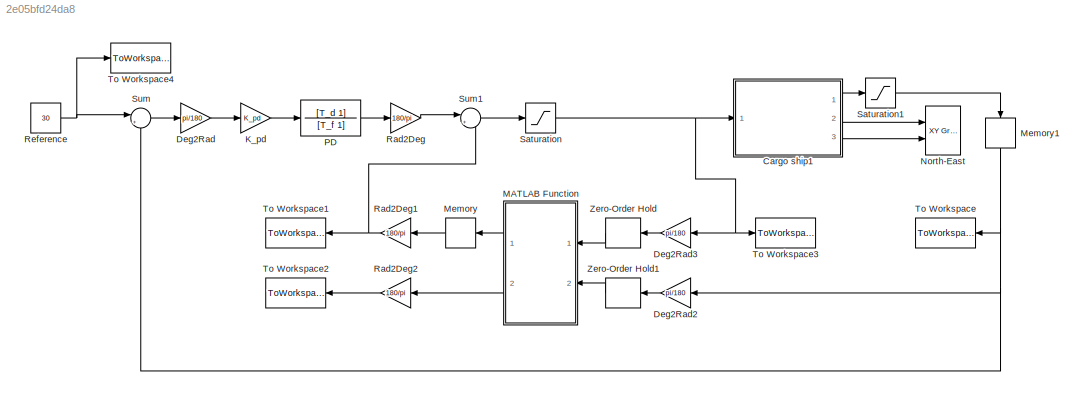
MODEL slx_2e05bfd24da8
KIND model
CONFIG AbsTol = auto
CONFIG EnableMultiTasking = on
CONFIG FixedStep = auto
CONFIG MaxStep = auto
CONFIG MinStep = auto
CONFIG RelTol = 1e-3
CONFIG SampleTimeConstraint = Unconstrained
CONFIG Solver = ode45
CONFIG SolverName = ode45
CONFIG StartTime = 0.0
CONFIG StopTime = 500
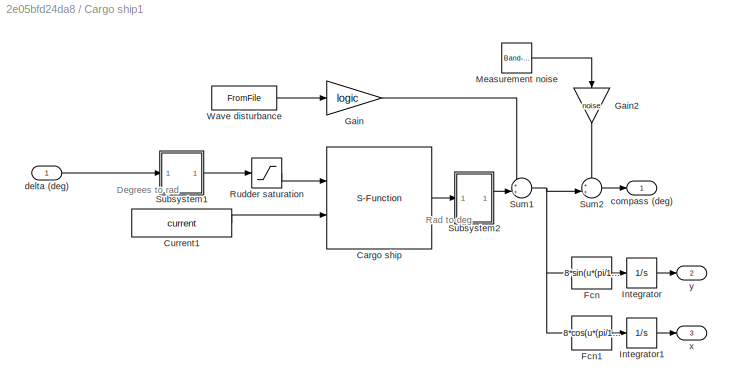
BLOCK [SubSystem] Cargo ship1
  Ports = [1, 3]
  RequestExecContextInheritance = off
BLOCK [S-Function] Cargo ship1/Cargo ship
  EnableBusSupport = off
  FunctionName = Cargoship
  Ports = [2, 1]
  SFcnIsStateOwnerBlock = off
  SFunctionDeploymentMode = off
BLOCK [Constant] Cargo ship1/Current1
  Value = current
BLOCK [Fcn] Cargo ship1/Fcn
  Expr = 8*sin(u*(pi/180))
BLOCK [Fcn] Cargo ship1/Fcn1
  Expr = 8*cos(u*(pi/180))
BLOCK [Gain] Cargo ship1/Gain
  Gain = logic
BLOCK [Gain] Cargo ship1/Gain2
  Gain = noise
BLOCK [Integrator] Cargo ship1/Integrator
  Ports = [1, 1]
BLOCK [Integrator] Cargo ship1/Integrator1
  Ports = [1, 1]
BLOCK [Reference] Cargo ship1/Measurement noise  REF=simulink/Sources/Band-Limited
White Noise
  Ports = [0, 1]
  SourceBlock = simulink/Sources/Band-Limited\nWhite Noise
  SourceProductBaseCode = SL
  SourceProductName = Simulink
  SourceType = Band-Limited White Noise.
BLOCK [Saturate] Cargo ship1/Rudder saturation
  InputPortMap = u0
  LowerLimit = -45*(pi/180)
  Ports = [1, 1]
  UpperLimit = 45*(pi/180)
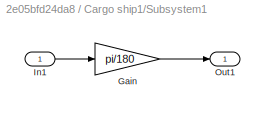
BLOCK [SubSystem] Cargo ship1/Subsystem1
  Ports = [1, 1]
  RequestExecContextInheritance = off
BLOCK [Gain] Cargo ship1/Subsystem1/Gain
  Gain = pi/180
BLOCK [Inport] Cargo ship1/Subsystem1/In1
  IconDisplay = Port number
BLOCK [Outport] Cargo ship1/Subsystem1/Out1
  IconDisplay = Port number
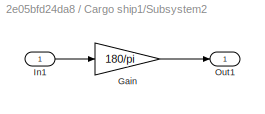
BLOCK [SubSystem] Cargo ship1/Subsystem2
  Ports = [1, 1]
  RequestExecContextInheritance = off
BLOCK [Gain] Cargo ship1/Subsystem2/Gain
  Gain = 180/pi
BLOCK [Inport] Cargo ship1/Subsystem2/In1
  IconDisplay = Port number
BLOCK [Outport] Cargo ship1/Subsystem2/Out1
  IconDisplay = Port number
BLOCK [Sum] Cargo ship1/Sum1
  IconShape = round
  InputSameDT = off
  Inputs = ++|
  OutDataTypeStr = Inherit: Inherit via internal rule
  Ports = [2, 1]
BLOCK [Sum] Cargo ship1/Sum2
  IconShape = round
  InputSameDT = off
  Inputs = ++|
  OutDataTypeStr = Inherit: Inherit via internal rule
  Ports = [2, 1]
BLOCK [FromFile] Cargo ship1/Wave disturbance
  FileName = wave.mat
  SampleTime = 0
BLOCK [Outport] Cargo ship1/compass (deg)
  IconDisplay = Port number
BLOCK [Inport] Cargo ship1/delta (deg)
  IconDisplay = Port number
BLOCK [Outport] Cargo ship1/x
  IconDisplay = Port number
  Port = 3
BLOCK [Outport] Cargo ship1/y
  IconDisplay = Port number
  Port = 2
BLOCK [Gain] Deg2Rad
  Gain = pi/180
  OutDataTypeStr = Inherit: Inherit via internal rule
  ParamDataTypeStr = Inherit: Inherit via internal rule
  SaturateOnIntegerOverflow = off
BLOCK [Gain] Deg2Rad2
  Gain = pi/180
  OutDataTypeStr = Inherit: Inherit via internal rule
  ParamDataTypeStr = Inherit: Inherit via internal rule
  SaturateOnIntegerOverflow = off
BLOCK [Gain] Deg2Rad3
  Gain = pi/180
  OutDataTypeStr = Inherit: Inherit via internal rule
  ParamDataTypeStr = Inherit: Inherit via internal rule
  SaturateOnIntegerOverflow = off
BLOCK [Gain] K_pd
  Gain = K_pd
  OutDataTypeStr = Inherit: Inherit via internal rule
  ParamDataTypeStr = Inherit: Inherit via internal rule
  SaturateOnIntegerOverflow = off
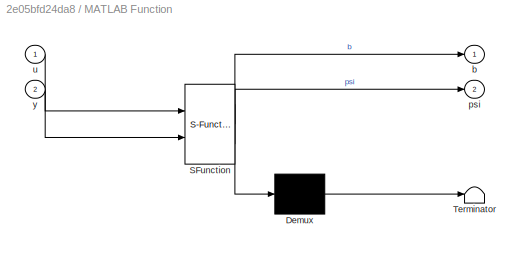
BLOCK [SubSystem] MATLAB Function
  ErrorFcn = Stateflow.Translate.translate
  PermitHierarchicalResolution = ExplicitOnly
  Ports = [2, 2]
  RequestExecContextInheritance = off
  SFBlockType = MATLAB Function
  TreatAsAtomicUnit = on
BLOCK [Demux] MATLAB Function/ Demux 
  Outputs = 1
  Ports = [1, 1]
BLOCK [S-Function] MATLAB Function/ SFunction 
  EnableBusSupport = on
  FunctionName = sf_sfun
  Parameters = data
  PortCounts = [2 3]
  Ports = [2, 3]
  SFcnIsStateOwnerBlock = off
  SFunctionDeploymentMode = off
  Tag = Stateflow S-Function KF_d 2
BLOCK [Terminator] MATLAB Function/ Terminator 
BLOCK [Outport] MATLAB Function/b
  IconDisplay = Port number
BLOCK [Outport] MATLAB Function/psi
  IconDisplay = Port number
  Port = 2
BLOCK [Inport] MATLAB Function/u
  IconDisplay = Port number
BLOCK [Inport] MATLAB Function/y
  IconDisplay = Port number
  Port = 2
BLOCK [Memory] Memory
BLOCK [Memory] Memory1
BLOCK [Reference] North-East  REF=simulink/Sinks/XY Graph
  Ports = [2]
  SourceBlock = simulink/Sinks/XY Graph
  SourceProductBaseCode = SL
  SourceProductName = Simulink
  SourceType = XY scope.
BLOCK [TransferFcn] PD
  Denominator = [T_f 1]
  Numerator = [T_d 1]
BLOCK [Gain] Rad2Deg
  Gain = 180/pi
  OutDataTypeStr = Inherit: Inherit via internal rule
  ParamDataTypeStr = Inherit: Inherit via internal rule
  SaturateOnIntegerOverflow = off
BLOCK [Gain] Rad2Deg1
  Gain = 180/pi
  OutDataTypeStr = Inherit: Inherit via internal rule
  ParamDataTypeStr = Inherit: Inherit via internal rule
  SaturateOnIntegerOverflow = off
BLOCK [Gain] Rad2Deg2
  Gain = 180/pi
  OutDataTypeStr = Inherit: Inherit via internal rule
  ParamDataTypeStr = Inherit: Inherit via internal rule
  SaturateOnIntegerOverflow = off
BLOCK [Constant] Reference
  Value = 30
BLOCK [Saturate] Saturation
  InputPortMap = u0
  LowerLimit = -45
  Ports = [1, 1]
  UpperLimit = 45
BLOCK [Saturate] Saturation1
  InputPortMap = u0
  LowerLimit = -35
  Ports = [1, 1]
  UpperLimit = 35
BLOCK [Sum] Sum
  IconShape = round
  InputSameDT = off
  Inputs = |+-
  OutDataTypeStr = Inherit: Inherit via internal rule
  Ports = [2, 1]
  SaturateOnIntegerOverflow = off
BLOCK [Sum] Sum1
  IconShape = round
  InputSameDT = off
  Inputs = |++
  OutDataTypeStr = Inherit: Inherit via internal rule
  Ports = [2, 1]
  SaturateOnIntegerOverflow = off
BLOCK [ToWorkspace] To Workspace
  FixptAsFi = on
  MaxDataPoints = inf
  Ports = [1]
  SampleTime = -1
  Save2DSignal = 3-D array (concatenate along third dimension)
  SaveFormat = Timeseries
  VariableName = compass
BLOCK [ToWorkspace] To Workspace1
  FixptAsFi = on
  MaxDataPoints = inf
  Ports = [1]
  SampleTime = -1
  Save2DSignal = 3-D array (concatenate along third dimension)
  SaveFormat = Timeseries
  VariableName = bias
BLOCK [ToWorkspace] To Workspace2
  FixptAsFi = on
  MaxDataPoints = inf
  Ports = [1]
  SampleTime = -1
  Save2DSignal = 3-D array (concatenate along third dimension)
  SaveFormat = Timeseries
  VariableName = psi_est
BLOCK [ToWorkspace] To Workspace3
  FixptAsFi = on
  MaxDataPoints = inf
  Ports = [1]
  SampleTime = -1
  Save2DSignal = 3-D array (concatenate along third dimension)
  SaveFormat = Timeseries
  VariableName = rudder
BLOCK [ToWorkspace] To Workspace4
  FixptAsFi = on
  MaxDataPoints = inf
  Ports = [1]
  SampleTime = -1
  Save2DSignal = 3-D array (concatenate along third dimension)
  SaveFormat = Timeseries
  VariableName = reference
BLOCK [ZeroOrderHold] Zero-Order Hold
  SampleTime = 0.1
BLOCK [ZeroOrderHold] Zero-Order Hold1
  SampleTime = 0.1
ANNOTATION Cargo ship1: Degrees to rad
ANNOTATION Cargo ship1: Rad to deg
LINE Cargo ship1/Cargo ship:1 -> Cargo ship1/Subsystem2:1
LINE Cargo ship1/Current1:1 -> Cargo ship1/Cargo ship:2
LINE Cargo ship1/Fcn1:1 -> Cargo ship1/Integrator1:1
LINE Cargo ship1/Fcn:1 -> Cargo ship1/Integrator:1
LINE Cargo ship1/Gain2:1 -> Cargo ship1/Sum2:1
LINE Cargo ship1/Gain:1 -> Cargo ship1/Sum1:1
LINE Cargo ship1/Integrator1:1 -> Cargo ship1/x:1
LINE Cargo ship1/Integrator:1 -> Cargo ship1/y:1
LINE Cargo ship1/Measurement noise:1 -> Cargo ship1/Gain2:1
LINE Cargo ship1/Rudder saturation:1 -> Cargo ship1/Cargo ship:1
LINE Cargo ship1/Subsystem1/Gain:1 -> Cargo ship1/Subsystem1/Out1:1
LINE Cargo ship1/Subsystem1/In1:1 -> Cargo ship1/Subsystem1/Gain:1
LINE Cargo ship1/Subsystem1:1 -> Cargo ship1/Rudder saturation:1
LINE Cargo ship1/Subsystem2/Gain:1 -> Cargo ship1/Subsystem2/Out1:1
LINE Cargo ship1/Subsystem2/In1:1 -> Cargo ship1/Subsystem2/Gain:1
LINE Cargo ship1/Subsystem2:1 -> Cargo ship1/Sum1:2
NET Cargo ship1/Sum1:1 -> Cargo ship1/Fcn1:1, Cargo ship1/Fcn:1, Cargo ship1/Sum2:2
LINE Cargo ship1/Sum2:1 -> Cargo ship1/compass (deg):1
LINE Cargo ship1/Wave disturbance:1 -> Cargo ship1/Gain:1
LINE Cargo ship1/delta (deg):1 -> Cargo ship1/Subsystem1:1
LINE Cargo ship1:1 -> Saturation1:1
LINE Cargo ship1:2 -> North-East:1
LINE Cargo ship1:3 -> North-East:2
LINE Deg2Rad2:1 -> Zero-Order Hold1:1
LINE Deg2Rad3:1 -> Zero-Order Hold:1
LINE Deg2Rad:1 -> K_pd:1
LINE K_pd:1 -> PD:1
LINE MATLAB Function:1 -> Memory:1
LINE MATLAB Function:2 -> Rad2Deg2:1
NET Memory1:1 -> Deg2Rad2:1, Sum:2, To Workspace:1
LINE Memory:1 -> Rad2Deg1:1
LINE PD:1 -> Rad2Deg:1
NET Rad2Deg1:1 -> Sum1:2, To Workspace1:1
LINE Rad2Deg2:1 -> To Workspace2:1
LINE Rad2Deg:1 -> Sum1:1
NET Reference:1 -> Sum:1, To Workspace4:1
LINE Saturation1:1 -> Memory1:1
NET Saturation:1 -> Cargo ship1:1, Deg2Rad3:1, To Workspace3:1
LINE Sum1:1 -> Saturation:1
LINE Sum:1 -> Deg2Rad:1
LINE Zero-Order Hold1:1 -> MATLAB Function:2
LINE Zero-Order Hold:1 -> MATLAB Function:1
note: NET lines group one-source signal fan-out (src -> all destinations, sorted); 1:1 wires keep LINE
CHART MATLAB Function states=1 transitions=1
  STATE_LABEL 'eML_blk_kernel()'
  STATE_LABEL 'SCRIPT:\nfunction [b,psi] = KF(u, y, data)\n%#codegen\npersistent init_flag A B C E Q R P_ x_ I\n\nif (isempty(init_flag))\n    \ninit_flag = 1;\n\n% Initialization for system\n[A,B,C,E,Q,R,P_,x_,I] = deal(data.Ad,data.Bd,data.Cd,data.Ed, ...\n    data.Q, data.R, data.P_0, data.x_0, data.I);\n% A=data.Ad;\n% B=data.Bd;\n% C=data.Cd;\n% E=data.Ed;\n% R=data.R;\n% Q=data.Q;\n% x_=data.x_0;\n% P_=data.P_0;\n% I=data.I;\n...<+280ch>'
